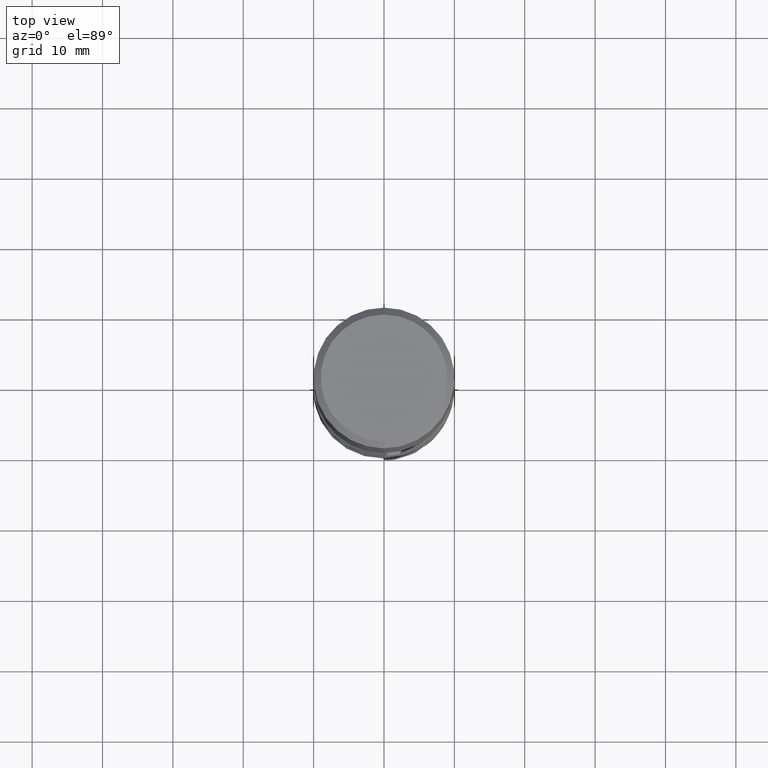
[diagram: clean part render]
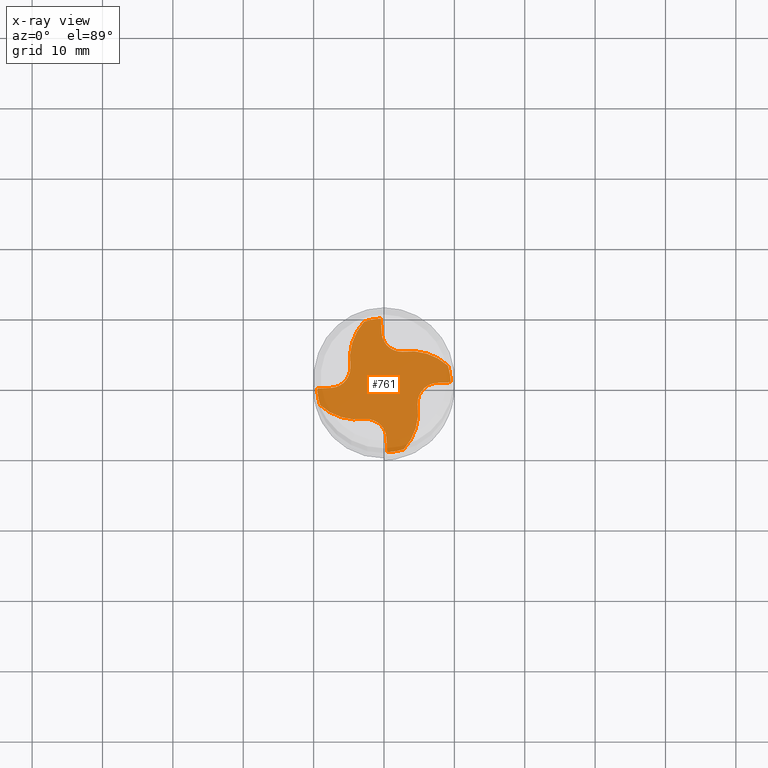
[diagram: x-ray — body ghosted, one internal face saturated and labeled with its STEP entity id]
A machine part, top view, then the same camera in x-ray: the body is ghosted and one INTERNAL B-rep face — a face not visible from any outside direction — is saturated and labeled: STEP entity #761.
In plain terms, the highlighted planar face has unit normal (0, 0, -1).
Its self-contained STEP definition (entity closure, byte-faithful):
#501=VERTEX_POINT('',#1456);
#563=VERTEX_POINT('',#1523);
#575=EDGE_CURVE('',#1001,#925,#1536,.T.);
#617=EDGE_CURVE('',#967,#1001,#1581,.T.);
#675=VERTEX_POINT('',#1645);
#683=EDGE_CURVE('',#925,#675,#1654,.T.);
#703=EDGE_CURVE('',#875,#1255,#1674,.T.);
#759=VERTEX_POINT('',#1735);
#761=ADVANCED_FACE('',(#1737),#1738,.T.);
#763=EDGE_CURVE('',#563,#967,#1740,.T.);
#795=EDGE_CURVE('',#869,#501,#1774,.T.);
#837=EDGE_CURVE('',#1101,#1177,#1818,.T.);
#843=EDGE_CURVE('',#889,#1101,#1824,.T.);
#851=VERTEX_POINT('',#1833);
#869=VERTEX_POINT('',#1852);
#875=VERTEX_POINT('',#1858);
#889=VERTEX_POINT('',#1874);
#925=VERTEX_POINT('',#1912);
#931=VERTEX_POINT('',#1918);
#967=VERTEX_POINT('',#1957);
#975=EDGE_CURVE('',#501,#875,#1965,.T.);
#1001=VERTEX_POINT('',#1994);
#1101=VERTEX_POINT('',#2107);
#1103=EDGE_CURVE('',#851,#889,#2109,.T.);
#1125=EDGE_CURVE('',#1163,#869,#2131,.T.);
#1163=VERTEX_POINT('',#2175);
#1177=VERTEX_POINT('',#2190);
#1247=EDGE_CURVE('',#931,#1163,#2267,.T.);
#1255=VERTEX_POINT('',#2276);
#1293=EDGE_CURVE('',#675,#931,#2319,.T.);
#1331=EDGE_CURVE('',#1255,#851,#2360,.T.);
#1397=EDGE_CURVE('',#1177,#759,#2435,.T.);
#1415=EDGE_CURVE('',#759,#563,#2456,.T.);
#1456=CARTESIAN_POINT('',(-9.48946550894183,-0.446199907108269,-62.0));
#1523=CARTESIAN_POINT('',(9.48946550894183,0.44619990710827,-62.0));
#1536=CIRCLE('',#3288,7.95600000000001);
#1581=CIRCLE('',#3380,2.875);
#1645=CARTESIAN_POINT('',(0.446199907108268,-9.48946550894183,-62.0));
#1654=CIRCLE('',#3961,9.49995);
#1674=CIRCLE('',#4023,2.875);
#1735=CARTESIAN_POINT('',(9.07274250554192,2.81680553653123,-61.9999999999952));
#1737=FACE_OUTER_BOUND('',#4758,.T.);
#1738=PLANE('',#4759);
#1740=LINE('',#4762,#4763);
#1774=CIRCLE('',#5365,9.49995);
#1818=CIRCLE('',#5593,2.875);
#1824=LINE('',#5610,#5611);
#1833=CARTESIAN_POINT('',(-2.81680553652664,9.07274250554334,-62.0));
#1852=CARTESIAN_POINT('',(-9.07274250554335,-2.81680553652663,-62.0));
#1858=CARTESIAN_POINT('',(-7.51669513574795,-0.35343915504734,-61.9999999999951));
#1874=CARTESIAN_POINT('',(-0.446199907108174,9.48946550894183,-61.9999999999951));
#1912=CARTESIAN_POINT('',(2.81680553652663,-9.07274250554334,-62.0));
#1918=CARTESIAN_POINT('',(0.35343915504734,-7.51669513574792,-61.9999999999951));
#1957=CARTESIAN_POINT('',(7.5166951357479,0.35343915504734,-61.9999999999952));
#1965=LINE('',#6688,#6689);
#1994=CARTESIAN_POINT('',(4.77990298355629,-2.65342278330758,-61.9999999999952));
#2107=CARTESIAN_POINT('',(-0.35343915504734,7.51669513574798,-61.9999999999951));
#2109=CIRCLE('',#8537,9.49995);
#2131=CIRCLE('',#8666,7.95600000000001);
#2175=CARTESIAN_POINT('',(-2.65342278330758,-4.77990298355631,-61.9999999999952));
#2190=CARTESIAN_POINT('',(2.65342278330758,4.77990298355636,-61.9999999999952));
#2267=CIRCLE('',#9539,2.875);
#2276=CARTESIAN_POINT('',(-4.77990298355633,2.65342278330758,-61.9999999999951));
#2319=LINE('',#9896,#9897);
#2360=CIRCLE('',#10035,7.95600000000001);
#2435=CIRCLE('',#10472,7.95600000000001);
#2456=CIRCLE('',#10725,9.49995);
#3288=AXIS2_PLACEMENT_3D('',#10829,#10830,#10831);
#3380=AXIS2_PLACEMENT_3D('',#10875,#10876,#10877);
#3961=AXIS2_PLACEMENT_3D('',#10950,#10951,#10952);
#4023=AXIS2_PLACEMENT_3D('',#10959,#10960,#10961);
#4758=EDGE_LOOP('',(#11014,#11015,#11016,#11017,#11018,#11019,#11020,#11021,#11022,#11023,#11024,#11025,#11026,#11027,#11028,#11029));
#4759=AXIS2_PLACEMENT_3D('',#11030,#11031,#11032);
#4762=CARTESIAN_POINT('',(7.5166951357479,0.35343915504734,-61.9999999999952));
#4763=VECTOR('',#11033,0.999999999999999);
#5365=AXIS2_PLACEMENT_3D('',#11056,#11057,#11058);
#5593=AXIS2_PLACEMENT_3D('',#11082,#11083,#11084);
#5610=CARTESIAN_POINT('',(-0.35343915504734,7.51669513574798,-61.9999999999951));
#5611=VECTOR('',#11085,0.999999999999999);
#6688=CARTESIAN_POINT('',(-7.51669513574795,-0.35343915504734,-61.9999999999951));
#6689=VECTOR('',#11197,0.999999999999999);
#8537=AXIS2_PLACEMENT_3D('',#11368,#11369,#11370);
#8666=AXIS2_PLACEMENT_3D('',#11377,#11378,#11379);
#9539=AXIS2_PLACEMENT_3D('',#11512,#11513,#11514);
#9896=CARTESIAN_POINT('',(0.35343915504734,-7.51669513574792,-61.9999999999951));
#9897=VECTOR('',#11580,0.999999999999999);
#10035=AXIS2_PLACEMENT_3D('',#11627,#11628,#11629);
#10472=AXIS2_PLACEMENT_3D('',#11765,#11766,#11767);
#10725=AXIS2_PLACEMENT_3D('',#11798,#11799,#11800);
#10829=CARTESIAN_POINT('',(-3.09966290215702,-3.75359433934022,-61.9999999999952));
#10830=DIRECTION('',(-1.22124532708767E-015,1.2493478473985E-014,-1.0));
#10831=DIRECTION('',(0.990392896645714,0.138281995479211,5.1811043684981E-016));
#10875=CARTESIAN_POINT('',(7.65173002897676,-2.51838789026476,-61.9999999999952));
#10876=DIRECTION('',(1.22124532708767E-015,-1.2493478473985E-014,1.0));
#10877=DIRECTION('',(-0.998896363555319,-0.0469686584432635,6.33095593023938E-016));
#10950=CARTESIAN_POINT('',(0.0,0.0,-62.0));
#10951=DIRECTION('',(0.0,0.0,-1.0));
#10952=DIRECTION('',(0.0,1.0,0.0));
#10959=CARTESIAN_POINT('',(-7.6517300289768,2.51838789026476,-61.9999999999951));
#10960=DIRECTION('',(-1.22124532708767E-015,1.2493478473985E-014,1.0));
#10961=DIRECTION('',(0.998896363555319,0.0469686584432635,6.33095593023938E-016));
#11014=ORIENTED_EDGE('',*,*,#763,.T.);
#11015=ORIENTED_EDGE('',*,*,#617,.T.);
#11016=ORIENTED_EDGE('',*,*,#575,.T.);
#11017=ORIENTED_EDGE('',*,*,#683,.T.);
#11018=ORIENTED_EDGE('',*,*,#1293,.T.);
#11019=ORIENTED_EDGE('',*,*,#1247,.T.);
#11020=ORIENTED_EDGE('',*,*,#1125,.T.);
#11021=ORIENTED_EDGE('',*,*,#795,.T.);
#11022=ORIENTED_EDGE('',*,*,#975,.T.);
#11023=ORIENTED_EDGE('',*,*,#703,.T.);
#11024=ORIENTED_EDGE('',*,*,#1331,.T.);
#11025=ORIENTED_EDGE('',*,*,#1103,.T.);
#11026=ORIENTED_EDGE('',*,*,#843,.T.);
#11027=ORIENTED_EDGE('',*,*,#837,.T.);
#11028=ORIENTED_EDGE('',*,*,#1397,.T.);
#11029=ORIENTED_EDGE('',*,*,#1415,.T.);
#11030=CARTESIAN_POINT('',(0.0,4.749975,-62.0));
#11031=DIRECTION('',(0.0,0.0,-1.0));
#11032=DIRECTION('',(0.0,1.0,0.0));
#11033=DIRECTION('',(-0.998896363553685,-0.0469686584780068,5.55111512312578E-016));
#11056=CARTESIAN_POINT('',(0.0,0.0,-62.0));
#11057=DIRECTION('',(0.0,0.0,-1.0));
#11058=DIRECTION('',(0.0,1.0,0.0));
#11082=CARTESIAN_POINT('',(2.51838789026476,7.65173002897683,-61.9999999999952));
#11083=DIRECTION('',(1.2493478473985E-014,1.22124532708767E-015,1.0));
#11084=DIRECTION('',(0.0469686584432635,-0.998896363555319,6.33095593023938E-016));
#11085=DIRECTION('',(0.0469686584780068,-0.998896363553685,5.55111512312578E-016));
#11197=DIRECTION('',(0.998896363553685,0.0469686584780068,5.55111512312578E-016));
#11368=CARTESIAN_POINT('',(0.0,0.0,-62.0));
#11369=DIRECTION('',(0.0,0.0,-1.0));
#11370=DIRECTION('',(0.0,1.0,0.0));
#11377=CARTESIAN_POINT('',(-3.75359433934022,3.099662902157,-61.9999999999952));
#11378=DIRECTION('',(1.2493478473985E-014,1.22124532708767E-015,-1.0));
#11379=DIRECTION('',(0.138281995479211,-0.990392896645714,5.1811043684981E-016));
#11512=CARTESIAN_POINT('',(-2.51838789026476,-7.65173002897678,-61.9999999999952));
#11513=DIRECTION('',(-1.2493478473985E-014,-1.22124532708767E-015,1.0));
#11514=DIRECTION('',(-0.0469686584432635,0.998896363555319,6.33095593023938E-016));
#11580=DIRECTION('',(-0.0469686584780068,0.998896363553685,5.55111512312578E-016));
#11627=CARTESIAN_POINT('',(3.09966290215697,3.75359433934022,-61.9999999999951));
#11628=DIRECTION('',(1.22124532708767E-015,-1.2493478473985E-014,-1.0));
#11629=DIRECTION('',(-0.990392896645714,-0.138281995479211,5.1811043684981E-016));
#11765=CARTESIAN_POINT('',(3.75359433934022,-3.09966290215694,-61.9999999999952));
#11766=DIRECTION('',(-1.2493478473985E-014,-1.22124532708767E-015,-1.0));
#11767=DIRECTION('',(-0.138281995479211,0.990392896645714,5.1811043684981E-016));
#11798=CARTESIAN_POINT('',(0.0,0.0,-62.0));
#11799=DIRECTION('',(0.0,0.0,-1.0));
#11800=DIRECTION('',(0.0,1.0,0.0));